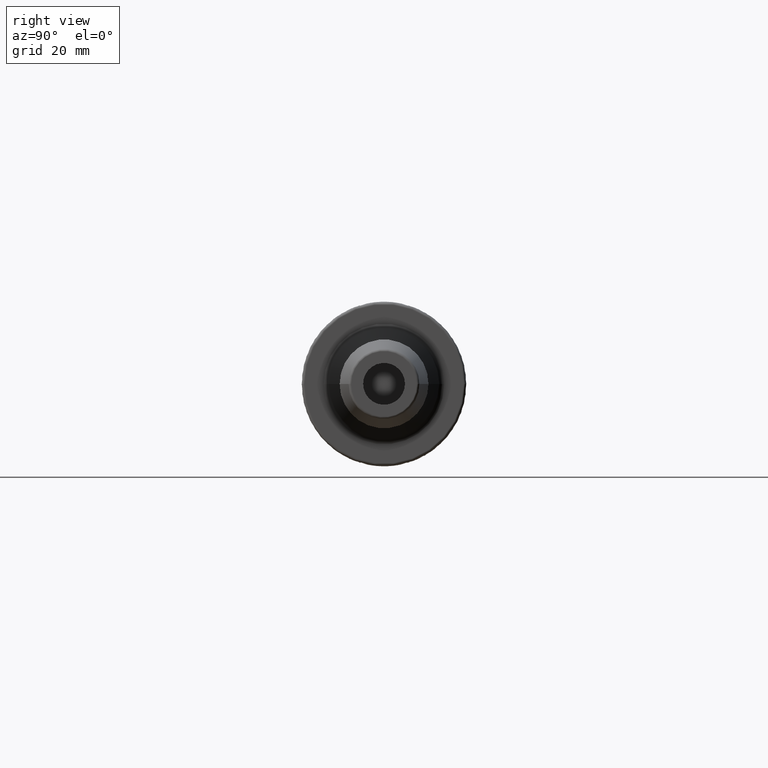
[diagram: clean part render]
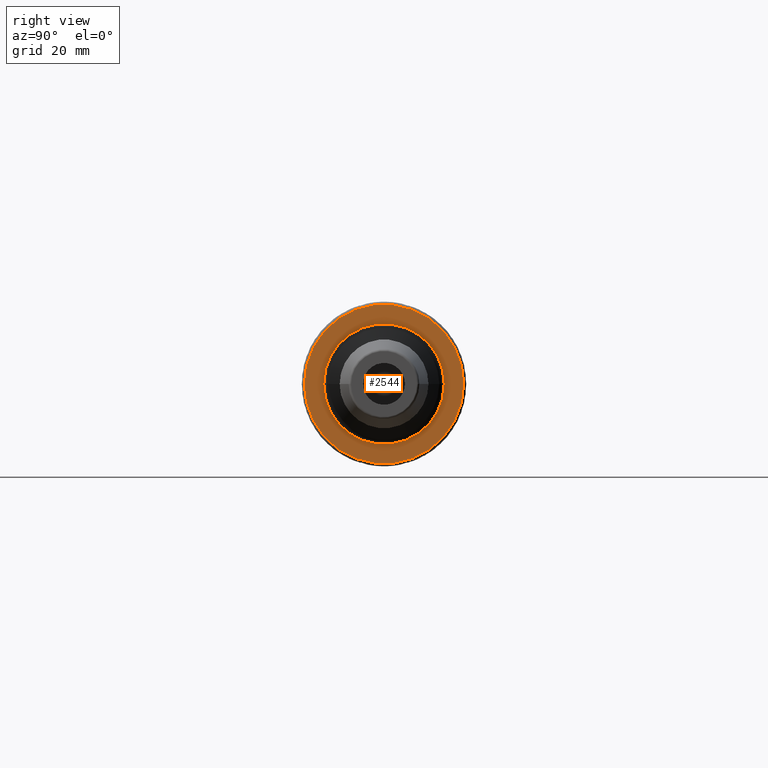
[diagram: same view with one face highlighted and labeled with its STEP entity id]
A machine part, right view. The second image highlights one B-rep face of the part: STEP entity #2544.
In plain terms, the highlighted planar face has unit normal (1, 0, 0).
Its self-contained STEP definition (entity closure, byte-faithful):
#816=CARTESIAN_POINT('',(2.7E1,0.E0,0.E0));
#817=DIRECTION('',(1.E0,0.E0,0.E0));
#818=DIRECTION('',(0.E0,1.E0,0.E0));
#819=AXIS2_PLACEMENT_3D('',#816,#817,#818);
#831=CARTESIAN_POINT('',(2.7E1,0.E0,0.E0));
#832=DIRECTION('',(-1.E0,0.E0,0.E0));
#833=DIRECTION('',(0.E0,1.E0,0.E0));
#834=AXIS2_PLACEMENT_3D('',#831,#832,#833);
#836=CARTESIAN_POINT('',(2.7E1,0.E0,0.E0));
#837=DIRECTION('',(1.E0,0.E0,0.E0));
#838=DIRECTION('',(0.E0,-1.E0,0.E0));
#839=AXIS2_PLACEMENT_3D('',#836,#837,#838);
#841=CARTESIAN_POINT('',(2.7E1,0.E0,0.E0));
#842=DIRECTION('',(1.E0,0.E0,0.E0));
#843=DIRECTION('',(0.E0,1.E0,0.E0));
#844=AXIS2_PLACEMENT_3D('',#841,#842,#843);
#1324=CARTESIAN_POINT('',(2.7E1,3.04875E1,0.E0));
#1325=VERTEX_POINT('',#1324);
#1326=CARTESIAN_POINT('',(2.7E1,-3.04875E1,0.E0));
#1327=VERTEX_POINT('',#1326);
#1437=CARTESIAN_POINT('',(2.7E1,-2.305959818596E1,0.E0));
#1438=CARTESIAN_POINT('',(2.7E1,2.305959818596E1,0.E0));
#1439=VERTEX_POINT('',#1437);
#1440=VERTEX_POINT('',#1438);
#2529=CARTESIAN_POINT('',(2.7E1,0.E0,0.E0));
#2530=DIRECTION('',(1.E0,0.E0,0.E0));
#2531=DIRECTION('',(0.E0,-1.E0,0.E0));
#2532=AXIS2_PLACEMENT_3D('',#2529,#2530,#2531);
#2533=PLANE('',#2532);
#2534=ORIENTED_EDGE('',*,*,#2524,.T.);
#2535=ORIENTED_EDGE('',*,*,#2508,.F.);
#2536=EDGE_LOOP('',(#2534,#2535));
#2537=FACE_OUTER_BOUND('',#2536,.F.);
#2539=ORIENTED_EDGE('',*,*,#2538,.T.);
#2541=ORIENTED_EDGE('',*,*,#2540,.T.);
#2542=EDGE_LOOP('',(#2539,#2541));
#2543=FACE_BOUND('',#2542,.F.);
#2544=ADVANCED_FACE('',(#2537,#2543),#2533,.T.);
#820=CIRCLE('',#819,3.04875E1);
#835=CIRCLE('',#834,3.04875E1);
#840=CIRCLE('',#839,2.305959818596E1);
#845=CIRCLE('',#844,2.305959818596E1);
#2508=EDGE_CURVE('',#1325,#1327,#820,.T.);
#2524=EDGE_CURVE('',#1325,#1327,#835,.T.);
#2538=EDGE_CURVE('',#1439,#1440,#840,.T.);
#2540=EDGE_CURVE('',#1440,#1439,#845,.T.);